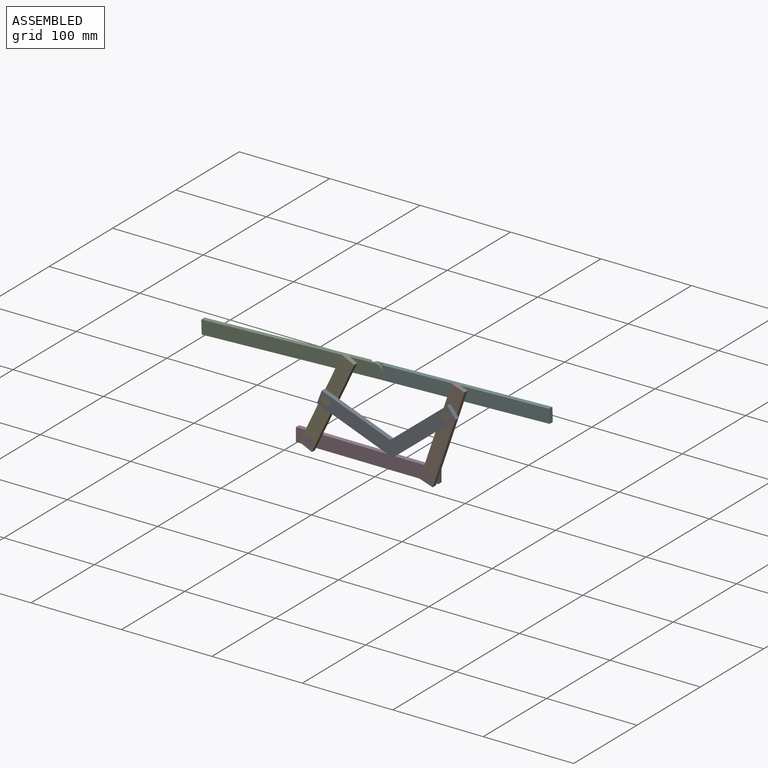
[diagram: assembled view]
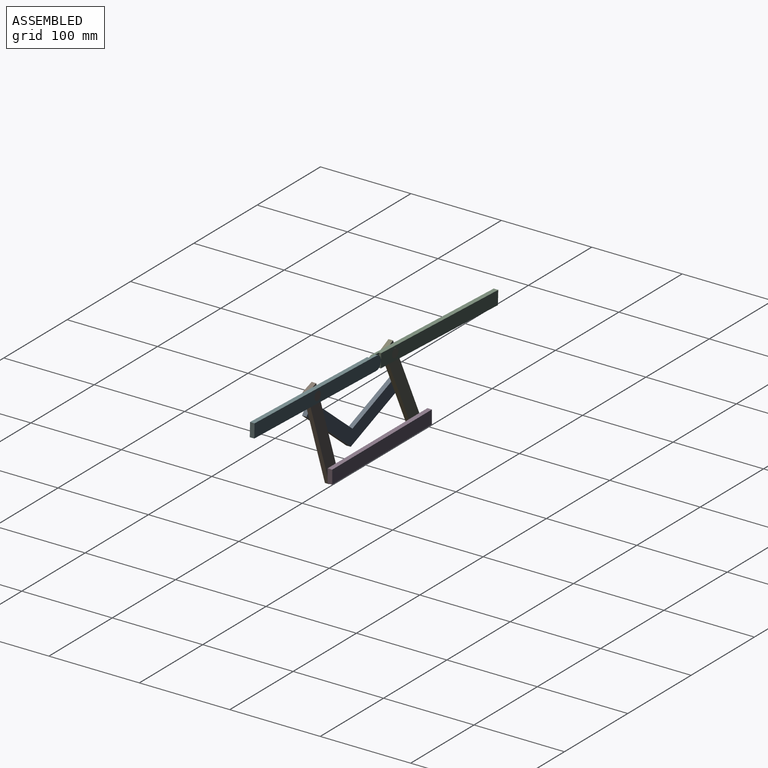
[diagram: assembled view, second angle]
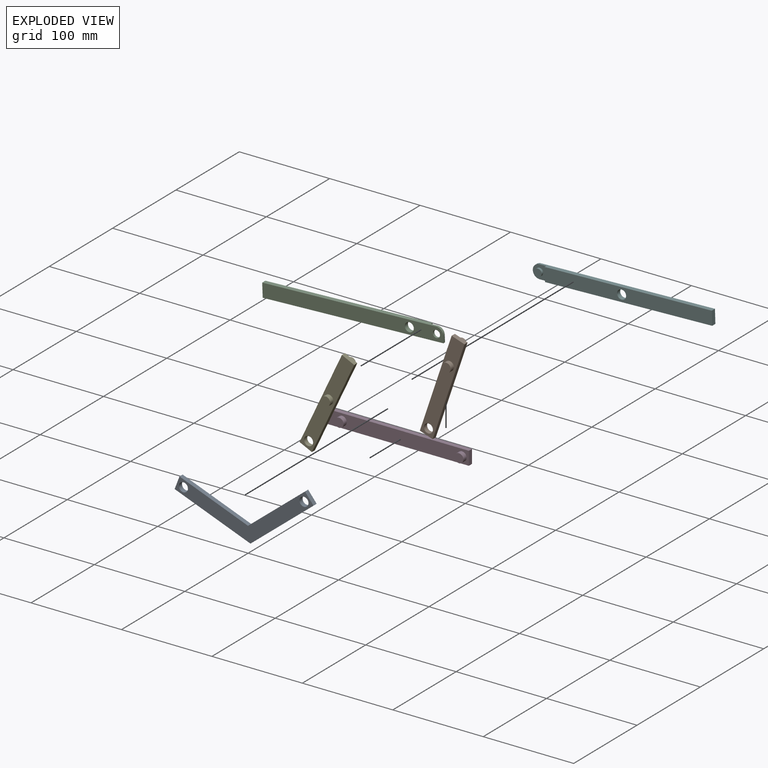
[diagram: exploded view]
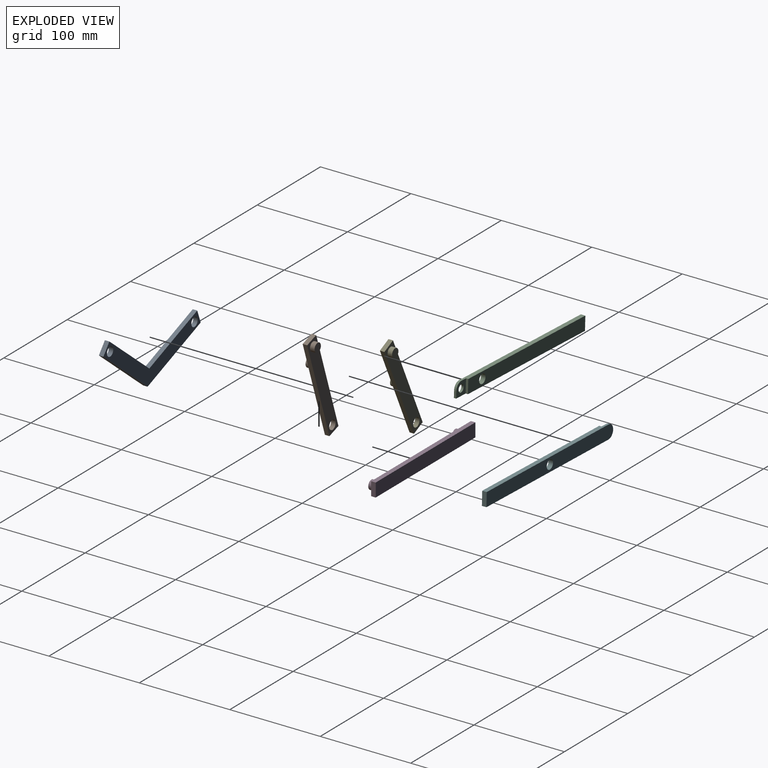
[diagram: exploded view, second angle]
ASSEMBLY  parts=6 mates=14
PART A: 10 faces, bbox 155.5x5x57.9 mm
  f0: plane 70.25x40.56mm, normal (0.5,0,0.87), area 405.6mm2, adj f1,f6,f8,f9
  f1: plane 12.99x7.5mm, normal (-0.87,0,0.5), area 75mm2, adj f0,f2,f8,f9
  f2: plane 77.75x44.89mm, normal (-0.5,0,-0.87), area 448.9mm2, adj f1,f3,f8,f9
  f3: plane 77.75x44.89mm, normal (0.5,0,-0.87), area 448.9mm2, adj f2,f4,f8,f9
  f4: plane 12.99x7.5mm, normal (0.87,0,0.5), area 75mm2, adj f3,f6,f8,f9
  f5: cylinder r=5mm len=10mm, axis (0,1,0), area 157.1mm2, adj f8,f9
  f6: plane 70.25x40.56mm, normal (-0.5,0,0.87), area 405.6mm2, adj f0,f4,f8,f9
  f7: cylinder r=5mm len=10mm, axis (0,1,0), area 157.1mm2, adj f8,f9
  f8: plane 155.49x57.88mm, normal (0,-1,0), area 2406.2mm2, adj f0,f1,f2,f3,f4,f5,f6,f7
  f9: plane 155.49x57.88mm, normal (0,1,0), area 2406.2mm2, adj f0,f1,f2,f3,f4,f5,f6,f7
PART B: 11 faces, bbox 110x15x15 mm
  f0: plane 15x5mm, normal (-1,0,0), area 75mm2, adj f1,f3,f4,f5
  f1: plane 110x5mm, normal (0,0,-1), area 550mm2, adj f0,f2,f4,f5
  f2: plane 15x5mm, normal (1,0,0), area 75mm2, adj f1,f3,f4,f5
  f3: plane 110x5mm, normal (0,0,1), area 550mm2, adj f0,f2,f4,f5
  f4: plane 110x15mm, normal (0,-1,0), area 1492.9mm2, adj f0,f1,f2,f3,f6,f7
  f5: plane 110x15mm, normal (0,1,0), area 1492.9mm2, adj f0,f1,f2,f3,f6,f9
  f6: cylinder r=5mm len=10mm, axis (0,1,0), area 157.1mm2, adj f4,f5
  f7: cylinder r=5mm len=10mm, axis (0,1,0), area 157.1mm2, adj f4,f8
  f8: plane 10x10mm, normal (0,-1,0), area 78.5mm2, adj f7
  f9: cylinder r=5mm len=10mm, axis (0,-1,0), area 157.1mm2, adj f5,f10
  f10: plane 10x10mm, normal (0,1,0), area 78.5mm2, adj f9
PART C: 11 faces, bbox 200x5x15 mm
  f0: plane 200x5mm, normal (0,0,-1), area 962.5mm2, adj f2,f3,f4,f5,f6,f7
  f1: plane 192.5x5mm, normal (0,0,1), area 943.8mm2, adj f2,f3,f5,f6,f7,f10
  f2: plane 185x15mm, normal (0,1,0), area 2696.5mm2, adj f0,f1,f3,f6,f9
  f3: plane 15x5mm, normal (-1,0,0), area 75mm2, adj f0,f1,f2,f5
  f4: plane 7.5x2.5mm, normal (1,0,0), area 18.8mm2, adj f0,f5,f7,f10
  f5: plane 200x15mm, normal (0,-1,0), area 2859.1mm2, adj f0,f1,f3,f4,f8,f9,f10
  f6: plane 15x2.5mm, normal (1,0,0), area 37.5mm2, adj f0,f1,f2,f7
  f7: plane 15x15mm, normal (0,1,0), area 162.7mm2, adj f0,f1,f4,f6,f8,f10
  f8: cylinder r=4mm len=8mm, axis (0,1,0), area 62.8mm2, adj f5,f7
  f9: cylinder r=5mm len=10mm, axis (0,1,0), area 157.1mm2, adj f2,f5
  f10: cylinder r=7.5mm len=7.5mm, axis (0,-1,0), area 29.5mm2, adj f1,f4,f5,f7
PART D: 10 faces, bbox 157.5x10x15 mm
  f0: plane 15x5mm, normal (-1,0,0), area 75mm2, adj f1,f3,f4,f5
  f1: plane 157.5x5mm, normal (0,0,-1), area 787.5mm2, adj f0,f2,f4,f5
  f2: plane 15x5mm, normal (1,0,0), area 75mm2, adj f1,f3,f4,f5
  f3: plane 157.5x5mm, normal (0,0,1), area 787.5mm2, adj f0,f2,f4,f5
  f4: plane 157.5x15mm, normal (0,-1,0), area 2205.4mm2, adj f0,f1,f2,f3,f6,f8
  f5: plane 157.5x15mm, normal (0,1,0), area 2362.5mm2, adj f0,f1,f2,f3
  f6: cylinder r=5mm len=10mm, axis (0,1,0), area 157.1mm2, adj f4,f7
  f7: plane 10x10mm, normal (0,-1,0), area 78.5mm2, adj f6
  f8: cylinder r=5mm len=10mm, axis (0,1,0), area 157.1mm2, adj f4,f9
  f9: plane 10x10mm, normal (0,-1,0), area 78.5mm2, adj f8
PART E: 11 faces, bbox 110x15x15 mm
  f0: plane 15x5mm, normal (-1,0,0), area 75mm2, adj f1,f3,f4,f5
  f1: plane 110x5mm, normal (0,0,-1), area 550mm2, adj f0,f2,f4,f5
  f2: plane 15x5mm, normal (1,0,0), area 75mm2, adj f1,f3,f4,f5
  f3: plane 110x5mm, normal (0,0,1), area 550mm2, adj f0,f2,f4,f5
  f4: plane 110x15mm, normal (0,-1,0), area 1492.9mm2, adj f0,f1,f2,f3,f6,f7
  f5: plane 110x15mm, normal (0,1,0), area 1492.9mm2, adj f0,f1,f2,f3,f6,f9
  f6: cylinder r=5mm len=10mm, axis (0,1,0), area 157.1mm2, adj f4,f5
  f7: cylinder r=5mm len=10mm, axis (0,1,0), area 157.1mm2, adj f4,f8
  f8: plane 10x10mm, normal (0,-1,0), area 78.5mm2, adj f7
  f9: cylinder r=5mm len=10mm, axis (0,-1,0), area 157.1mm2, adj f5,f10
  f10: plane 10x10mm, normal (0,1,0), area 78.5mm2, adj f9
PART F: 11 faces, bbox 200x5x15 mm
  f0: plane 192.5x5mm, normal (0,0,-1), area 943.8mm2, adj f2,f3,f4,f6,f7,f10
  f1: plane 192.5x5mm, normal (0,0,1), area 943.8mm2, adj f2,f3,f4,f6,f7,f10
  f2: plane 15x5mm, normal (-1,0,0), area 75mm2, adj f0,f1,f3,f4
  f3: plane 200x15mm, normal (0,-1,0), area 2897.3mm2, adj f0,f1,f2,f9,f10
  f4: plane 185x15mm, normal (0,1,0), area 2696.5mm2, adj f0,f1,f2,f6,f9
  f5: cylinder r=4mm len=8mm, axis (0,1,0), area 62.8mm2, adj f7,f8
  f6: plane 15x2.5mm, normal (1,0,0), area 37.5mm2, adj f0,f1,f4,f7
  f7: plane 15x15mm, normal (0,1,0), area 150.6mm2, adj f0,f1,f5,f6,f10
  f8: plane 8x8mm, normal (0,1,0), area 50.3mm2, adj f5
  f9: cylinder r=5mm len=10mm, axis (0,1,0), area 157.1mm2, adj f3,f4
  f10: cylinder r=7.5mm len=15mm, axis (0,-1,0), area 58.9mm2, adj f0,f1,f3,f7
PLACE A rot(axis=(0,-1,0),9deg) t=(-57.05,-0.03,38.29)mm
PLACE B rot(axis=(-0.81,0,-0.58),180deg) t=(49.84,-0.03,-5.35)mm
PLACE C rot(axis=(0,-1,0),2.3deg) t=(-194.81,9.97,71.4)mm
PLACE D t=(-90.65,9.97,-8.14)mm fixed
PLACE E rot(axis=(-0.84,0,-0.54),180deg) t=(-83.13,-0.03,-4.23)mm
PLACE F rot(axis=(0.02,0,-1),180deg) t=(189.88,4.97,84.98)mm
MATE cylindrical D.f6 <-> E.f6  axis (0,1,0) through (-73.15,4.97,-0.64)mm
MATE planar D.f4 <-> E.f4  axis (0,-1,0) through (-12.26,4.97,-0.64)mm
MATE planar E.f5 <-> A.f9  axis (0,-1,0) through (-51.99,-0.03,44.37)mm
MATE cylindrical F.f5 <-> C.f8  axis (0,-1,0) through (-2.76,7.47,86.52)mm
MATE planar E.f4 <-> C.f5  axis (0,1,0) through (-52.94,4.97,42.35)mm
MATE planar A.f9 <-> B.f5  axis (0,1,0) through (18.81,-0.03,38.8)mm
MATE cylindrical B.f6 <-> D.f8  axis (0,-1,0) through (59.35,-0.03,-0.64)mm
MATE cylindrical B.f9 <-> A.f5  axis (0,1,0) through (82.51,-0.03,68.06)mm
MATE planar D.f4 <-> B.f4  axis (0,-1,0) through (-12.26,4.97,-0.64)mm
MATE cylindrical C.f9 <-> E.f7  axis (0,1,0) through (-32.73,4.97,85.33)mm
MATE planar F.f7 <-> C.f7  axis (0,-1,0) through (0.76,7.47,94.13)mm
MATE planar B.f4 <-> F.f4  axis (0,1,0) through (67.42,4.97,46.77)mm
MATE cylindrical E.f9 <-> A.f7  axis (0,1,0) through (-50.82,-0.03,46.87)mm
MATE cylindrical F.f9 <-> B.f7  axis (0,-1,0) through (89.7,7.47,89.38)mm
